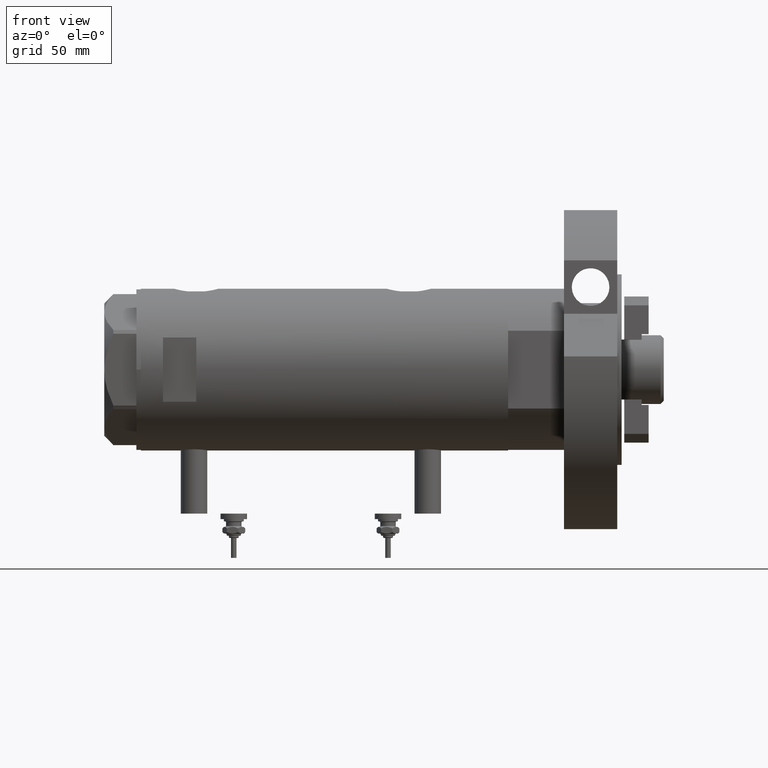
[diagram: clean part render]
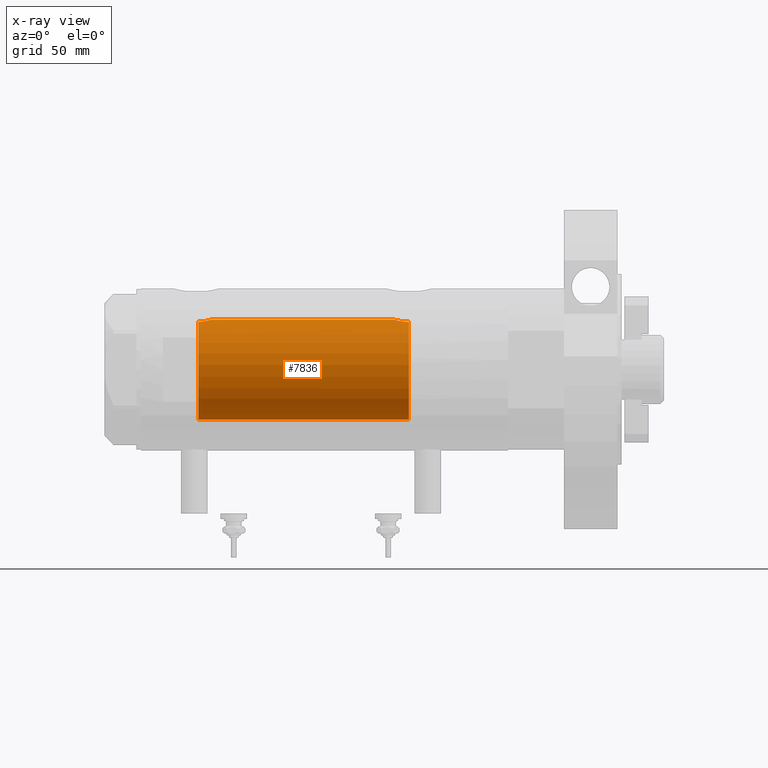
[diagram: x-ray — body ghosted, one internal face saturated and labeled with its STEP entity id]
A machine part, front view, then the same camera in x-ray: the body is ghosted and one INTERNAL B-rep face — a face not visible from any outside direction — is saturated and labeled: STEP entity #7836.
In plain terms, the highlighted cylindrical surface (partial cylindrical patch) has radius 22.5 mm, axis along (1, 0, -0).
Its self-contained STEP definition (entity closure, byte-faithful):
#11 = DIRECTION ( 'NONE',  ( -0.000000000000000000, -0.000000000000000000, -1.000000000000000000 ) ) ;
#145 = CARTESIAN_POINT ( 'NONE',  ( 22.14407575385478566, -3.989443360685410944, 52.66372562971260152 ) ) ;
#191 = CARTESIAN_POINT ( 'NONE',  ( 22.22503367403959729, -3.510871893734218929, 52.33155767831966898 ) ) ;
#206 = VECTOR ( 'NONE', #3286, 1000.000000000000000 ) ;
#237 = CARTESIAN_POINT ( 'NONE',  ( 22.50000000000000711, -0.3950131823107579376, 51.32000000000001450 ) ) ;
#388 = CARTESIAN_POINT ( 'NONE',  ( 21.79602751566978469, -5.585535159907480285, -34.61520197735674031 ) ) ;
#550 = DIRECTION ( 'NONE',  ( 1.000000000000000000, 0.000000000000000000, 0.000000000000000000 ) ) ;
#558 = CARTESIAN_POINT ( 'NONE',  ( 0.000000000000000000, 0.000000000000000000, 82.90000000000000568 ) ) ;
#598 = CIRCLE ( 'NONE', #6916, 22.50000000000000355 ) ;
#745 = EDGE_CURVE ( 'NONE', #2662, #5926, #7778, .T. ) ;
#773 = CARTESIAN_POINT ( 'NONE',  ( 21.51635656889892800, -6.580000000000002736, -37.66825681860745334 ) ) ;
#777 = CARTESIAN_POINT ( 'NONE',  ( 22.45982135096091170, -1.357617207441330409, 51.45864426403784364 ) ) ;
#1009 = CARTESIAN_POINT ( 'NONE',  ( 21.71318796968428444, -5.899027407341885798, -35.17698536342957993 ) ) ;
#1027 = CARTESIAN_POINT ( 'NONE',  ( 21.55747828655794507, -6.444296957919024571, 56.51452509780953193 ) ) ;
#1104 = CARTESIAN_POINT ( 'NONE',  ( 21.58601844322714314, -6.349099877921657864, 56.12904811410315631 ) ) ;
#1156 = EDGE_LOOP ( 'NONE', ( #6788, #6946, #4271, #2702, #3288, #7445 ) ) ;
#1332 = DIRECTION ( 'NONE',  ( -1.000000000000000000, 0.000000000000000000, 0.000000000000000000 ) ) ;
#1370 = CARTESIAN_POINT ( 'NONE',  ( 0.000000000000000000, 0.000000000000000000, -38.09999999999999432 ) ) ;
#1562 = CARTESIAN_POINT ( 'NONE',  ( 21.52981735982750067, -6.536420260328985599, -37.22962480407473151 ) ) ;
#1683 = CARTESIAN_POINT ( 'NONE',  ( 21.94965745907477483, -4.947937303812822485, -33.75715039555711172 ) ) ;
#1826 = AXIS2_PLACEMENT_3D ( 'NONE', #558, #11, #3167 ) ;
#1846 = CARTESIAN_POINT ( 'NONE',  ( 22.25875518649490914, -3.305696985817209388, -32.39458010501984830 ) ) ;
#1905 = DIRECTION ( 'NONE',  ( 0.000000000000000000, 0.000000000000000000, -1.000000000000000000 ) ) ;
#1918 = CARTESIAN_POINT ( 'NONE',  ( 22.50000000000000355, 8.058593785575293352E-16, -31.51999999999999957 ) ) ;
#2090 = LINE ( 'NONE', #5339, #4051 ) ;
#2129 = DIRECTION ( 'NONE',  ( -0.000000000000000000, -0.000000000000000000, -1.000000000000000000 ) ) ;
#2144 = CARTESIAN_POINT ( 'NONE',  ( 22.40145249794126059, -2.111617392236897928, 51.66495543481974551 ) ) ;
#2237 = AXIS2_PLACEMENT_3D ( 'NONE', #6432, #5044, #550 ) ;
#2238 = CARTESIAN_POINT ( 'NONE',  ( 21.53958216864941733, -6.503568251352486840, 56.90000000000000568 ) ) ;
#2281 = VERTEX_POINT ( 'NONE', #7884 ) ;
#2302 = CARTESIAN_POINT ( 'NONE',  ( 21.88647530142791453, -5.220320393727292618, -34.08868086085048787 ) ) ;
#2429 = CARTESIAN_POINT ( 'NONE',  ( 22.40278435593407735, -2.127100118045534227, -31.85850395174203697 ) ) ;
#2516 = CARTESIAN_POINT ( 'NONE',  ( 22.31324851815826449, -2.920315458573305989, -32.18792883542265315 ) ) ;
#2553 = CARTESIAN_POINT ( 'NONE',  ( 22.48448975507857028, -0.8627579744204282308, -31.57320172378662448 ) ) ;
#2638 = EDGE_CURVE ( 'NONE', #2662, #3062, #2090, .T. ) ;
#2662 = VERTEX_POINT ( 'NONE', #4020 ) ;
#2702 = ORIENTED_EDGE ( 'NONE', *, *, #4275, .T. ) ;
#2703 = CARTESIAN_POINT ( 'NONE',  ( 22.11568811446341343, -4.143519122923675191, 52.78480504416090469 ) ) ;
#2746 = CARTESIAN_POINT ( 'NONE',  ( 21.80246547822149239, -5.562416037700068649, 54.36358628205821475 ) ) ;
#2872 = CARTESIAN_POINT ( 'NONE',  ( 21.53958216864941733, -6.503568251352486840, 56.90000000000000568 ) ) ;
#3062 = VERTEX_POINT ( 'NONE', #5916 ) ;
#3167 = DIRECTION ( 'NONE',  ( -1.000000000000000000, 0.000000000000000000, 0.000000000000000000 ) ) ;
#3205 = FACE_OUTER_BOUND ( 'NONE', #1156, .T. ) ;
#3267 = VERTEX_POINT ( 'NONE', #3822 ) ;
#3286 = DIRECTION ( 'NONE',  ( -0.000000000000000000, -0.000000000000000000, -1.000000000000000000 ) ) ;
#3288 = ORIENTED_EDGE ( 'NONE', *, *, #4634, .F. ) ;
#3328 = CARTESIAN_POINT ( 'NONE',  ( 22.41838729966077182, -1.923945741267794718, 51.60453118595340527 ) ) ;
#3641 = CARTESIAN_POINT ( 'NONE',  ( 22.14149984669489868, -4.016690124115203098, -32.87069324031266859 ) ) ;
#3687 = CARTESIAN_POINT ( 'NONE',  ( 22.07839819281284832, -4.346355962099938353, -33.14115912649136675 ) ) ;
#3773 = CARTESIAN_POINT ( 'NONE',  ( 22.43844456282249666, -1.716722304487074080, -31.73314599255653334 ) ) ;
#3822 = CARTESIAN_POINT ( 'NONE',  ( -22.50000000000000355, 0.000000000000000000, -38.09999999999999432 ) ) ;
#3955 = LINE ( 'NONE', #8315, #206 ) ;
#3960 = CARTESIAN_POINT ( 'NONE',  ( 22.50000000000000355, 0.000000000000000000, 51.32000000000000028 ) ) ;
#4020 = CARTESIAN_POINT ( 'NONE',  ( 22.50000000000000355, 0.000000000000000000, 51.32000000000000028 ) ) ;
#4051 = VECTOR ( 'NONE', #2129, 1000.000000000000000 ) ;
#4197 = CARTESIAN_POINT ( 'NONE',  ( 21.61760927586798786, -6.241696587716372591, -35.97279459237284271 ) ) ;
#4271 = ORIENTED_EDGE ( 'NONE', *, *, #4837, .F. ) ;
#4275 = EDGE_CURVE ( 'NONE', #2281, #3267, #598, .T. ) ;
#4606 = CARTESIAN_POINT ( 'NONE',  ( -22.50000000000000355, 0.000000000000000000, 56.90000000000000568 ) ) ;
#4634 = EDGE_CURVE ( 'NONE', #6996, #3267, #3955, .T. ) ;
#4667 = CARTESIAN_POINT ( 'NONE',  ( 22.19872433573121029, -3.673198495424858656, 52.43723143248278973 ) ) ;
#4741 = CARTESIAN_POINT ( 'NONE',  ( 21.51635656889892800, -6.580000000000002736, -38.10000000000000142 ) ) ;
#4837 = EDGE_CURVE ( 'NONE', #2281, #3062, #5002, .T. ) ;
#4992 = CARTESIAN_POINT ( 'NONE',  ( 22.50000000000000711, -0.2154191524768943600, -31.51999999999999957 ) ) ;
#5002 = B_SPLINE_CURVE_WITH_KNOTS ( 'NONE', 3,
 ( #4741, #773, #1562, #8045, #4197, #5384, #1009, #8084, #388, #5506, #2302, #1683, #6380, #3687, #3641, #1846, #2516, #2429, #3773, #6342, #2553, #7581, #4992, #1918 ),
 .UNSPECIFIED., .F., .F.,
 ( 4, 2, 2, 2, 2, 2, 2, 2, 2, 2, 2, 4 ),
 ( 0.01034583194474684477, 0.01163831905076680162, 0.01293080615678676021, 0.01357704970979674818, 0.01422329326280673788, 0.01486953681581672584, 0.01551578036882671555, 0.01680826747484669842, 0.01810075458086667782, 0.01939324168688665723, 0.02003948523989664693, 0.02068572879290663316 ),
 .UNSPECIFIED. ) ;
#5044 = DIRECTION ( 'NONE',  ( 0.000000000000000000, 0.000000000000000000, 1.000000000000000000 ) ) ;
#5271 = CARTESIAN_POINT ( 'NONE',  ( 22.03004750576871729, -4.584392313773047789, 53.16396497621450834 ) ) ;
#5314 = CARTESIAN_POINT ( 'NONE',  ( 22.34502592404423993, -2.661921217589553024, 51.86975867852115840 ) ) ;
#5329 = CIRCLE ( 'NONE', #2237, 22.50000000000000355 ) ;
#5339 = CARTESIAN_POINT ( 'NONE',  ( 22.50000000000000355, 2.755455298081545172E-15, 82.90000000000000568 ) ) ;
#5355 = CARTESIAN_POINT ( 'NONE',  ( 21.85824266975972563, -5.341352339310158293, 54.03795740361617561 ) ) ;
#5384 = CARTESIAN_POINT ( 'NONE',  ( 21.68753676189998103, -5.992345198295754294, -35.37327232579067982 ) ) ;
#5506 = CARTESIAN_POINT ( 'NONE',  ( 21.85557760450272369, -5.347779544816339659, -34.26030284772028267 ) ) ;
#5523 = CARTESIAN_POINT ( 'NONE',  ( 21.65869182728110331, -6.096583454856817852, 55.39420471307960980 ) ) ;
#5765 = CYLINDRICAL_SURFACE ( 'NONE', #1826, 22.50000000000000355 ) ;
#5904 = CARTESIAN_POINT ( 'NONE',  ( 22.30010606974974152, -3.011418659624945704, 52.03678901685799474 ) ) ;
#5916 = CARTESIAN_POINT ( 'NONE',  ( 22.50000000000000355, 8.058593785575293352E-16, -31.51999999999999957 ) ) ;
#5926 = VERTEX_POINT ( 'NONE', #2238 ) ;
#6342 = CARTESIAN_POINT ( 'NONE',  ( 22.47508397315214523, -1.079737406574097003, -31.60558251353132064 ) ) ;
#6380 = CARTESIAN_POINT ( 'NONE',  ( 21.98210460142358258, -4.802207463187404102, -33.59652004334174791 ) ) ;
#6432 = CARTESIAN_POINT ( 'NONE',  ( 0.000000000000000000, 0.000000000000000000, 56.90000000000000568 ) ) ;
#6534 = CARTESIAN_POINT ( 'NONE',  ( 22.48961206562542259, -0.7836756559690483126, 51.35527653274375837 ) ) ;
#6574 = CARTESIAN_POINT ( 'NONE',  ( 22.44752031034920847, -1.547413406105165867, 51.50156217857971797 ) ) ;
#6788 = ORIENTED_EDGE ( 'NONE', *, *, #745, .F. ) ;
#6870 = CARTESIAN_POINT ( 'NONE',  ( 21.70285280737213540, -5.939204755440072425, 55.04123435135584685 ) ) ;
#6916 = AXIS2_PLACEMENT_3D ( 'NONE', #1370, #1905, #1332 ) ;
#6946 = ORIENTED_EDGE ( 'NONE', *, *, #2638, .T. ) ;
#6996 = VERTEX_POINT ( 'NONE', #4606 ) ;
#7251 = CARTESIAN_POINT ( 'NONE',  ( 21.97180182460413889, -4.853116730831955827, 53.43987939335087844 ) ) ;
#7445 = ORIENTED_EDGE ( 'NONE', *, *, #8257, .T. ) ;
#7581 = CARTESIAN_POINT ( 'NONE',  ( 22.49690699366424695, -0.4310528819996887195, -31.53055249859414744 ) ) ;
#7778 = B_SPLINE_CURVE_WITH_KNOTS ( 'NONE', 3,
 ( #3960, #237, #6534, #777, #6574, #3328, #2144, #5314, #5904, #191, #4667, #145, #2703, #5271, #7251, #5355, #2746, #6870, #5523, #1104, #1027, #2872 ),
 .UNSPECIFIED., .F., .F.,
 ( 4, 2, 2, 2, 2, 2, 2, 2, 2, 2, 4 ),
 ( 0.000000000000000000, 0.001167753031984902464, 0.001751629547977353804, 0.002335506063969804928, 0.003503259095954700236, 0.004087135611947153094, 0.004671012127939605518, 0.005838765159924511235, 0.007006518191909416951, 0.008174271223894323535, 0.009342024255879228384 ),
 .UNSPECIFIED. ) ;
#7836 = ADVANCED_FACE ( 'NONE', ( #3205 ), #5765, .F. ) ;
#7884 = CARTESIAN_POINT ( 'NONE',  ( 21.51635656889892800, -6.580000000000002736, -38.10000000000000142 ) ) ;
#8045 = CARTESIAN_POINT ( 'NONE',  ( 21.58054822171800424, -6.366927345060005017, -36.38402244069209246 ) ) ;
#8084 = CARTESIAN_POINT ( 'NONE',  ( 21.76737372098157053, -5.695831585513579931, -34.79847891606892318 ) ) ;
#8257 = EDGE_CURVE ( 'NONE', #6996, #5926, #5329, .T. ) ;
#8315 = CARTESIAN_POINT ( 'NONE',  ( -22.50000000000000355, 0.000000000000000000, 82.90000000000000568 ) ) ;